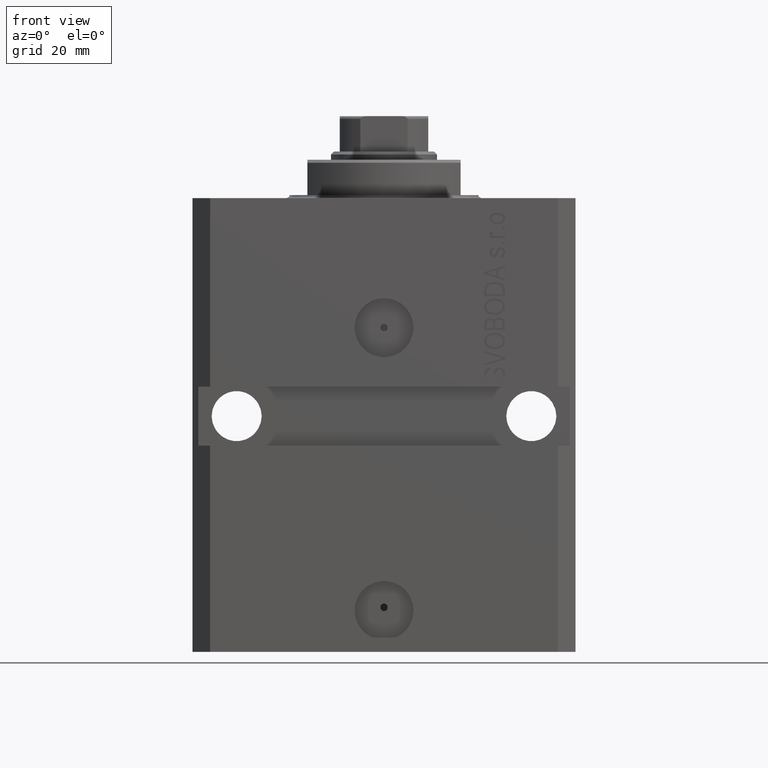
[diagram: clean part render]
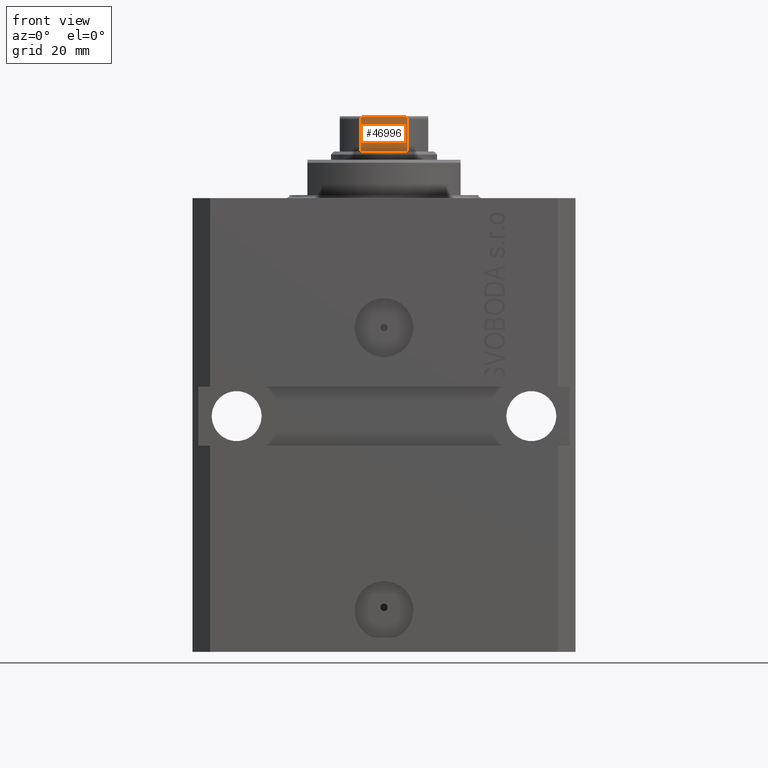
[diagram: same view with one face highlighted and labeled with its STEP entity id]
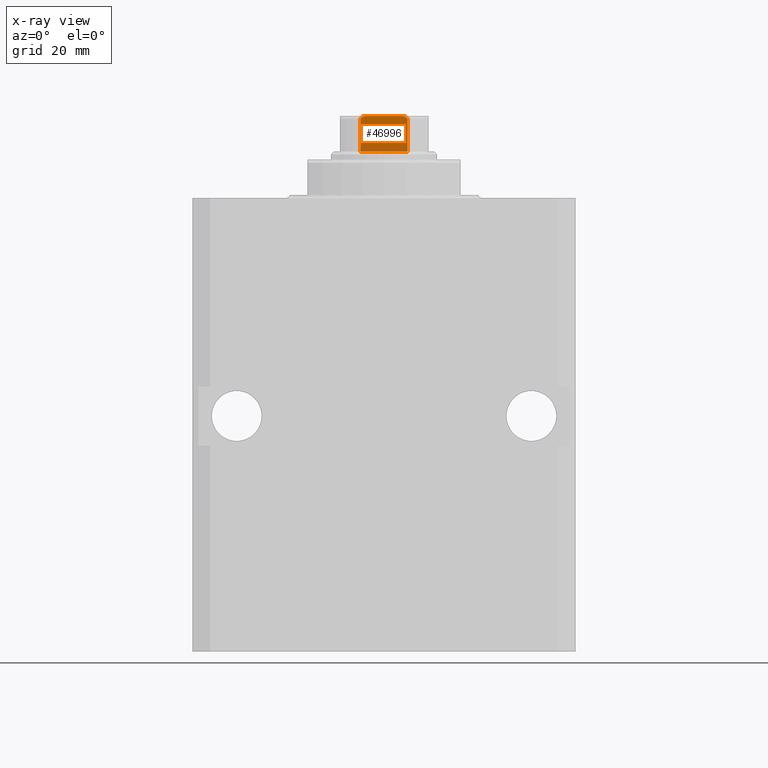
[diagram: x-ray of the same camera — body ghosted, the highlighted face saturated]
A machine part, front view. The second image highlights one B-rep face of the part: STEP entity #46996.
The next image is the same camera in x-ray: the body ghosted, the highlighted face saturated — about 0% of this face is hidden behind the body in this view.
In plain terms, the highlighted planar face has unit normal (-0, 1, 0).
Its self-contained STEP definition (entity closure, byte-faithful):
#67 = CARTESIAN_POINT ( 'NONE',  ( 3.597188386589909470, -7.500000000000001776, 83.89052843393243108 ) ) ;
#1823 = CARTESIAN_POINT ( 'NONE',  ( -3.904072061442365182, -7.500000000000002665, 83.71287056890807321 ) ) ;
#3419 = CARTESIAN_POINT ( 'NONE',  ( 3.254991323038164630, -7.500000000000000000, 83.98269028443158390 ) ) ;
#3649 = CARTESIAN_POINT ( 'NONE',  ( 4.000000000000001776, -7.500000000000001776, 83.56026396800436373 ) ) ;
#4234 = EDGE_CURVE ( 'NONE', #13989, #9463, #31295, .T. ) ;
#4456 = CARTESIAN_POINT ( 'NONE',  ( 4.000000000000000888, -7.500000000000000000, 83.49999999999997158 ) ) ;
#4605 = DIRECTION ( 'NONE',  ( 1.000000000000000000, 5.782411586589358625E-17, 0.000000000000000000 ) ) ;
#4763 = CARTESIAN_POINT ( 'NONE',  ( -3.857502111569855785, -7.500000000000001776, 83.75173359969211617 ) ) ;
#5235 = CARTESIAN_POINT ( 'NONE',  ( 4.000000000000000888, -7.500000000000000000, 77.99999999999998579 ) ) ;
#5862 = DIRECTION ( 'NONE',  ( -5.782411586589358625E-17, 1.000000000000000000, 0.000000000000000000 ) ) ;
#6249 = DIRECTION ( 'NONE',  ( -0.000000000000000000, -0.000000000000000000, 1.000000000000000000 ) ) ;
#6757 = CARTESIAN_POINT ( 'NONE',  ( 2.783882181415008539, -7.500000000000000888, 84.00000000000000000 ) ) ;
#6955 = LINE ( 'NONE', #32682, #27403 ) ;
#7023 = CARTESIAN_POINT ( 'NONE',  ( -4.000000000000000888, -7.500000000000000000, -0.001000000000001000089 ) ) ;
#7874 = CARTESIAN_POINT ( 'NONE',  ( -4.000000000000000888, -7.500000000000000000, 83.49999999999997158 ) ) ;
#8175 = LINE ( 'NONE', #22704, #30047 ) ;
#8347 = CARTESIAN_POINT ( 'NONE',  ( -3.255843148148216404, -7.500000000000000000, 83.98262378726870736 ) ) ;
#8607 = B_SPLINE_CURVE_WITH_KNOTS ( 'NONE', 3,
 ( #41016, #9209, #8347, #37426, #14797, #4763, #1823, #27328, #23725, #7874 ),
 .UNSPECIFIED., .F., .F.,
 ( 4, 2, 2, 2, 4 ),
 ( 4.336808689942017736E-19, 0.0007049202178654275690, 0.001057380326798146395, 0.001233610381264493936, 0.001409840435730841477 ),
 .UNSPECIFIED. ) ;
#9209 = CARTESIAN_POINT ( 'NONE',  ( -3.020030562295406007, -7.500000000000000000, 83.99999999999998579 ) ) ;
#9463 = VERTEX_POINT ( 'NONE', #16035 ) ;
#11400 = ORIENTED_EDGE ( 'NONE', *, *, #22956, .T. ) ;
#12083 = EDGE_CURVE ( 'NONE', #38590, #36701, #43499, .T. ) ;
#13636 = ORIENTED_EDGE ( 'NONE', *, *, #12083, .F. ) ;
#13989 = VERTEX_POINT ( 'NONE', #38285 ) ;
#14356 = ORIENTED_EDGE ( 'NONE', *, *, #4234, .F. ) ;
#14449 = AXIS2_PLACEMENT_3D ( 'NONE', #17545, #5862, #31603 ) ;
#14797 = CARTESIAN_POINT ( 'NONE',  ( -3.710689790367166285, -7.500000000000003553, 83.84812118173427109 ) ) ;
#16035 = CARTESIAN_POINT ( 'NONE',  ( 2.783882181415008539, -7.500000000000000888, 84.00000000000000000 ) ) ;
#16463 = B_SPLINE_CURVE_WITH_KNOTS ( 'NONE', 3,
 ( #46820, #3649, #32724, #43926, #36076, #39439, #67, #3419, #28678, #6757 ),
 .UNSPECIFIED., .F., .F.,
 ( 4, 2, 2, 2, 4 ),
 ( 2.823925224926892107E-17, 0.0001779688448869027099, 0.0003559376897737763631, 0.0007118753795475453536, 0.001423750759095083335 ),
 .UNSPECIFIED. ) ;
#17006 = CARTESIAN_POINT ( 'NONE',  ( -7.499999999999997335, -7.500000000000000888, 84.00000000000000000 ) ) ;
#17071 = FACE_OUTER_BOUND ( 'NONE', #36267, .T. ) ;
#17545 = CARTESIAN_POINT ( 'NONE',  ( -7.499999999999997335, -7.500000000000000888, 84.00000000000000000 ) ) ;
#19408 = ORIENTED_EDGE ( 'NONE', *, *, #25924, .T. ) ;
#22704 = CARTESIAN_POINT ( 'NONE',  ( -7.499999999999997335, -7.500000000000000888, 78.00000000000000000 ) ) ;
#22956 = EDGE_CURVE ( 'NONE', #44354, #35304, #6955, .T. ) ;
#23725 = CARTESIAN_POINT ( 'NONE',  ( -4.000000000000210498, -7.500000000000001776, 83.56034186205209835 ) ) ;
#24623 = DIRECTION ( 'NONE',  ( 1.000000000000000000, 5.782411586589358625E-17, 0.000000000000000000 ) ) ;
#25360 = DIRECTION ( 'NONE',  ( -0.000000000000000000, -0.000000000000000000, 1.000000000000000000 ) ) ;
#25924 = EDGE_CURVE ( 'NONE', #35304, #9463, #16463, .T. ) ;
#26395 = VECTOR ( 'NONE', #25360, 1000.000000000000000 ) ;
#27037 = CARTESIAN_POINT ( 'NONE',  ( -4.000000000000000888, -7.500000000000000000, 83.49999999999997158 ) ) ;
#27328 = CARTESIAN_POINT ( 'NONE',  ( -3.975735230428955713, -7.500000000000000888, 83.61773041319776212 ) ) ;
#27403 = VECTOR ( 'NONE', #6249, 1000.000000000000000 ) ;
#28678 = CARTESIAN_POINT ( 'NONE',  ( 3.020011215871892585, -7.500000000000000888, 83.99999999999998579 ) ) ;
#30047 = VECTOR ( 'NONE', #4605, 1000.000000000000000 ) ;
#31295 = LINE ( 'NONE', #17006, #34527 ) ;
#31358 = PLANE ( 'NONE',  #14449 ) ;
#31603 = DIRECTION ( 'NONE',  ( -1.000000000000000000, -5.782411586589358625E-17, 0.000000000000000000 ) ) ;
#32161 = EDGE_CURVE ( 'NONE', #13989, #36701, #8607, .T. ) ;
#32682 = CARTESIAN_POINT ( 'NONE',  ( 4.000000000000000888, -7.500000000000000000, -0.001000000000001000089 ) ) ;
#32724 = CARTESIAN_POINT ( 'NONE',  ( 3.976018255615921149, -7.500000000000000000, 83.61726199300996143 ) ) ;
#33238 = ORIENTED_EDGE ( 'NONE', *, *, #37992, .T. ) ;
#34527 = VECTOR ( 'NONE', #24623, 1000.000000000000000 ) ;
#35304 = VERTEX_POINT ( 'NONE', #4456 ) ;
#36076 = CARTESIAN_POINT ( 'NONE',  ( 3.858352854028576751, -7.500000000000001776, 83.75117951603156996 ) ) ;
#36147 = CARTESIAN_POINT ( 'NONE',  ( -4.000000000000000888, -7.500000000000000000, 78.00000000000001421 ) ) ;
#36267 = EDGE_LOOP ( 'NONE', ( #14356, #45003, #13636, #33238, #11400, #19408 ) ) ;
#36701 = VERTEX_POINT ( 'NONE', #27037 ) ;
#37426 = CARTESIAN_POINT ( 'NONE',  ( -3.598393151503795906, -7.500000000000000888, 83.89012191927410811 ) ) ;
#37992 = EDGE_CURVE ( 'NONE', #38590, #44354, #8175, .T. ) ;
#38285 = CARTESIAN_POINT ( 'NONE',  ( -2.783882181415010315, -7.500000000000000888, 84.00000000000000000 ) ) ;
#38590 = VERTEX_POINT ( 'NONE', #36147 ) ;
#39439 = CARTESIAN_POINT ( 'NONE',  ( 3.708875323752935937, -7.500000000000000888, 83.84930352055465619 ) ) ;
#41016 = CARTESIAN_POINT ( 'NONE',  ( -2.783882181415010315, -7.500000000000000888, 84.00000000000000000 ) ) ;
#43499 = LINE ( 'NONE', #7023, #26395 ) ;
#43926 = CARTESIAN_POINT ( 'NONE',  ( 3.904208668232345136, -7.500000000000000000, 83.71278134537496385 ) ) ;
#44354 = VERTEX_POINT ( 'NONE', #5235 ) ;
#45003 = ORIENTED_EDGE ( 'NONE', *, *, #32161, .T. ) ;
#46820 = CARTESIAN_POINT ( 'NONE',  ( 4.000000000000000888, -7.500000000000000000, 83.49999999999997158 ) ) ;
#46996 = ADVANCED_FACE ( 'NONE', ( #17071 ), #31358, .F. ) ;